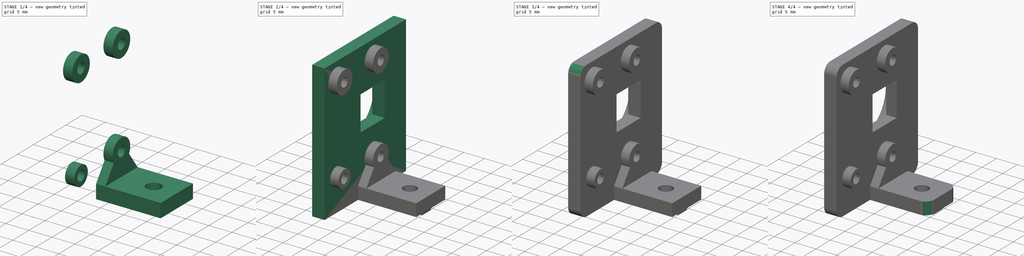
[diagram: build sequence overview — one tinted view per stage of 4, left to right]
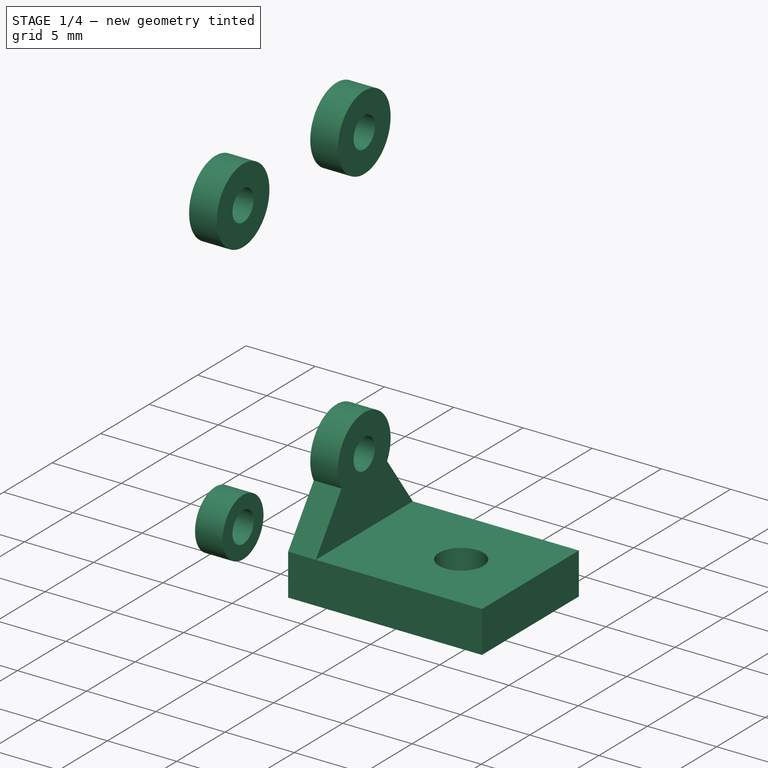
[diagram: stage 1 of 4 — iso view after this stage's code; geometry added in this stage tinted green]
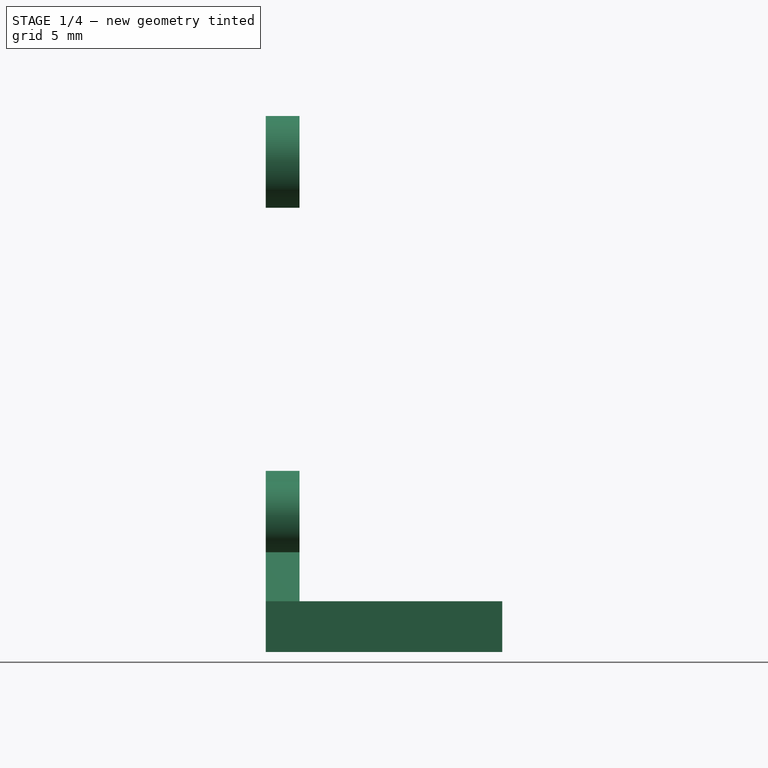
[diagram: stage 1 of 4 — front view after this stage's code; geometry added in this stage tinted green]
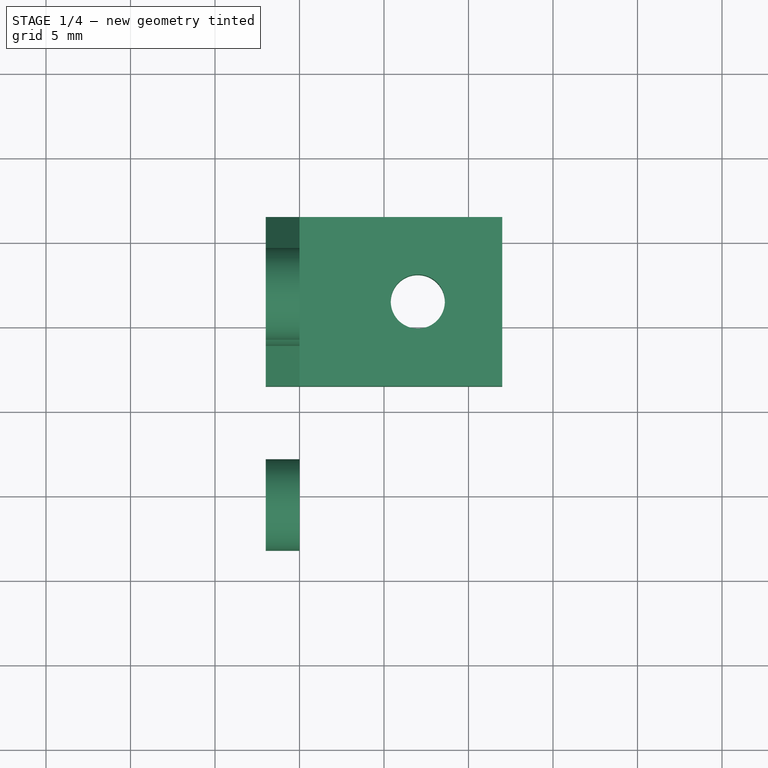
[diagram: stage 1 of 4 — top view after this stage's code; geometry added in this stage tinted green]
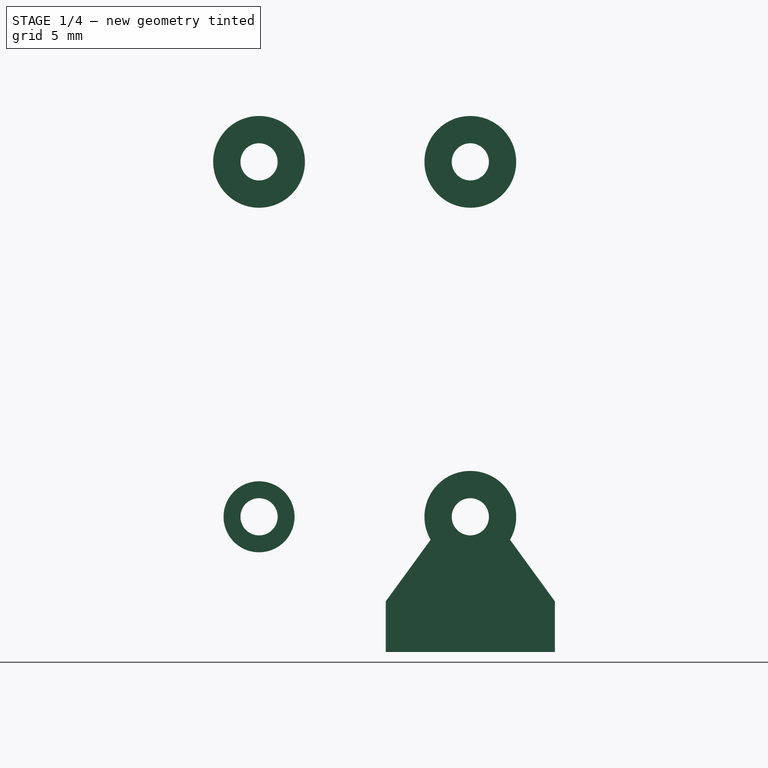
[diagram: stage 1 of 4 — right view after this stage's code; geometry added in this stage tinted green]
FCSTD DOCUMENT  (FreeCAD 0.14R3669 (Git) (Packman))
Label: camera-mount-2
License: CC-BY 3.0
LicenseURL: http://creativecommons.org/licenses/by/3.0/
objects: Sketcher::SketchObject×7, PartDesign::Pad×5, PartDesign::Fillet×3, PartDesign::Pocket×2, Part::MultiFuse×1
note: 25 computed .brp shape members not serialized (recipe doc carries the construction recipe); baked Part::Feature solids carry a one-line shape summary decoded from their .brp

FEATURE [PartDesign::Pad] Pad003
  Length = 2
  Length2 = 100
  Placement = pos=(3,0,0) rot=(0.57735,0.57735,0.57735;2.0944rad)
  Sketch = -> Sketch001
  Type = 0
FEATURE [PartDesign::Pad] Pad004
  Length = 12
  Length2 = 100
  Placement = pos=(5,0,0) rot=(0.57735,0.57735,0.57735;2.0944rad)
  Sketch = -> Sketch002
  Type = 0
FEATURE [Sketcher::SketchObject] Sketch006
  ExternalGeometry = -> [Pad004]
  Placement = pos=(5,0,3) rot=(0,0,-1;1.5708rad)
  Support = -> Pad004 [Face1]
  sketch-geometry (1):
    g0: Circle CenterX=-16.5 CenterY=7 CenterZ=0 NormalX=0 NormalY=0 NormalZ=1 Radius=1.6
  constraints (3):
    c: Radius(g0) = 1.6
    c: DistanceY(g0,g-4) = 5
    c: DistanceX(g0,g-4) = -5
FEATURE [PartDesign::Pocket] Pocket
  Length = 5
  Placement = pos=(5,0,0) rot=(0.57735,0.57735,0.57735;2.0944rad)
  Sketch = -> Sketch006
  Type = 0
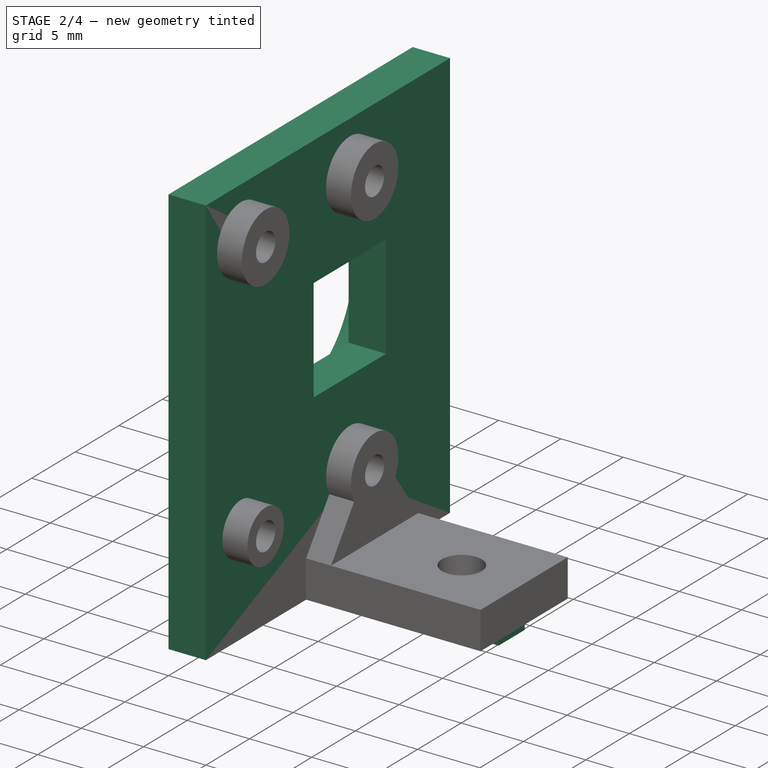
[diagram: stage 2 of 4 — iso view after this stage's code; geometry added in this stage tinted green]
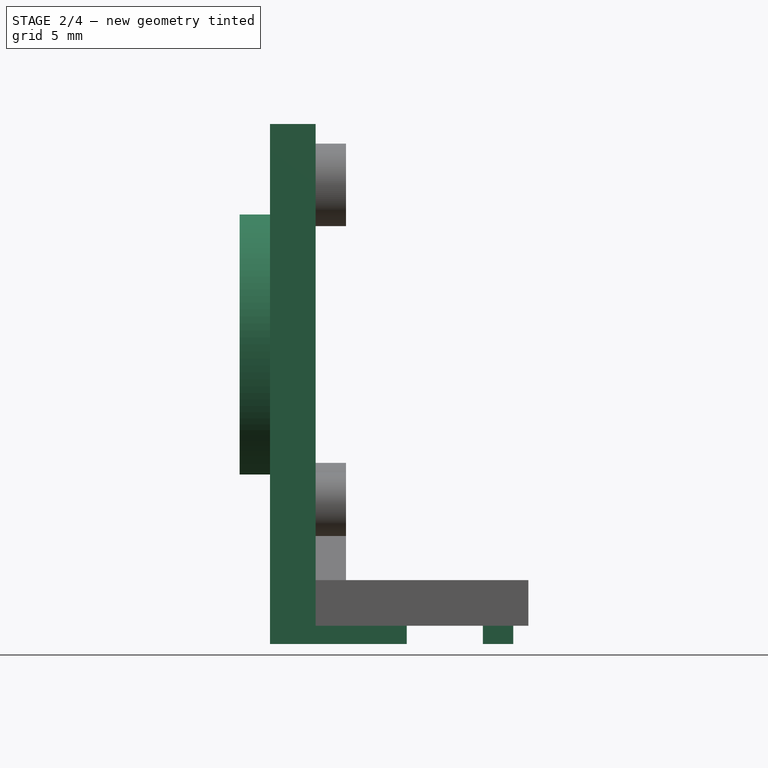
[diagram: stage 2 of 4 — front view after this stage's code; geometry added in this stage tinted green]
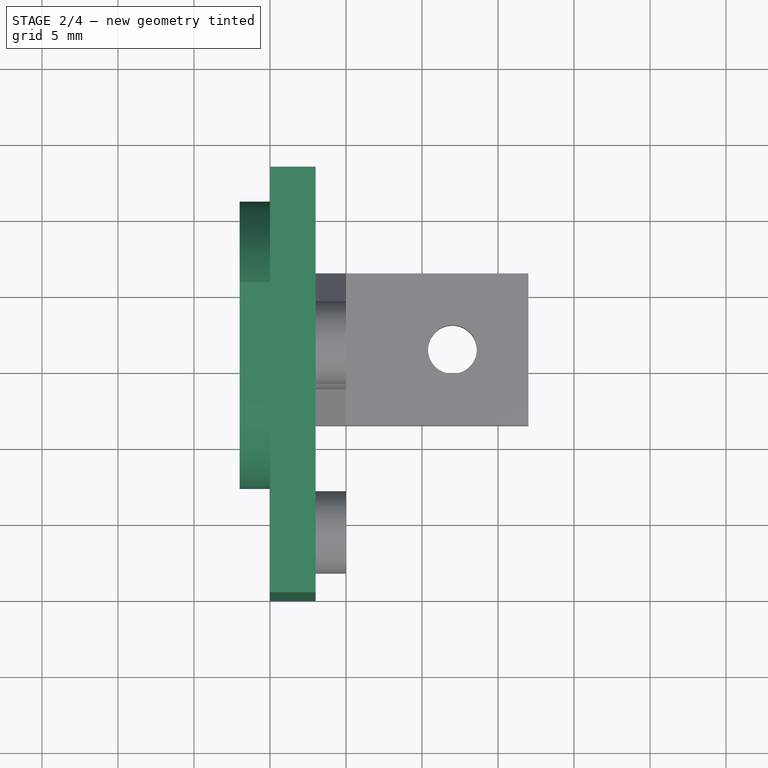
[diagram: stage 2 of 4 — top view after this stage's code; geometry added in this stage tinted green]
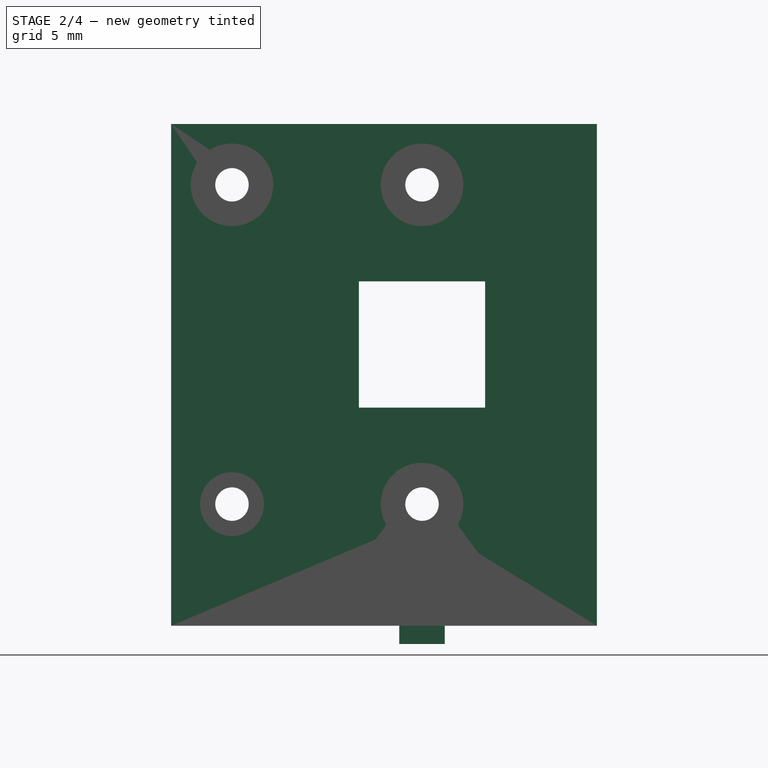
[diagram: stage 2 of 4 — right view after this stage's code; geometry added in this stage tinted green]
FEATURE [Sketcher::SketchObject] Sketch
  Placement = pos=(0,0,0) rot=(0.57735,0.57735,0.57735;2.0944rad)
  sketch-geometry (19):
    g0: LineSegment StartX=0 StartY=0 StartZ=0 EndX=28 EndY=0 EndZ=0
    g1: LineSegment StartX=28 StartY=0 StartZ=0 EndX=28 EndY=33 EndZ=0
    g2: LineSegment StartX=28 StartY=33 StartZ=0 EndX=0 EndY=33 EndZ=0
    g3: LineSegment StartX=0 StartY=33 StartZ=0 EndX=0 EndY=0 EndZ=0
    g4: Circle CenterX=16.5 CenterY=29 CenterZ=0 NormalX=0 NormalY=0 NormalZ=1 Radius=1.1
    g5: Circle CenterX=4 CenterY=29 CenterZ=0 NormalX=0 NormalY=0 NormalZ=1 Radius=1.1
    g6: Circle CenterX=4 CenterY=8 CenterZ=0 NormalX=0 NormalY=0 NormalZ=1 Radius=1.1
    g7: Circle CenterX=16.5 CenterY=8 CenterZ=0 NormalX=0 NormalY=0 NormalZ=1 Radius=1.1
    g8: LineSegment [constr] StartX=4 StartY=8 StartZ=0 EndX=16.5 EndY=8 EndZ=0
    g9: LineSegment [constr] StartX=16.5 StartY=8 StartZ=0 EndX=16.5 EndY=29 EndZ=0
    g10: LineSegment [constr] StartX=16.5 StartY=29 StartZ=0 EndX=4 EndY=29 EndZ=0
    g11: LineSegment [constr] StartX=4 StartY=29 StartZ=0 EndX=4 EndY=8 EndZ=0
    g12: LineSegment StartX=12.35 StartY=22.65 StartZ=0 EndX=20.65 EndY=22.65 EndZ=0
    g13: LineSegment StartX=20.65 StartY=22.65 StartZ=0 EndX=20.65 EndY=14.35 EndZ=0
    g14: LineSegment StartX=20.65 StartY=14.35 StartZ=0 EndX=12.35 EndY=14.35 EndZ=0
    g15: LineSegment StartX=12.35 StartY=14.35 StartZ=0 EndX=12.35 EndY=22.65 EndZ=0
    g16: LineSegment [constr] StartX=12.35 StartY=22.65 StartZ=0 EndX=20.65 EndY=14.35 EndZ=0
    g17: LineSegment [constr] StartX=20.65 StartY=22.65 StartZ=0 EndX=12.35 EndY=14.35 EndZ=0
    g18: GeomPoint [constr] X=16.5 Y=18.5 Z=0
  constraints (49):
    c: Coincident(g0,g1)
    c: Coincident(g1,g2)
    c: Coincident(g2,g3)
    c: Coincident(g3,g0)
    c: Horizontal(g0)
    c: Horizontal(g2)
    c: Vertical(g1)
    c: Vertical(g3)
    c: Coincident(g0,g-1)
    c: DistanceY(g3) = -33
    c: DistanceX(g0) = 28
    c: Equal(g5,g4)
    c: Equal(g4,g6)
    c: Equal(g6,g7)
    c: Radius(g6) = 1.1
    c: Coincident(g8,g9)
    c: Coincident(g9,g10)
    c: Coincident(g10,g11)
    c: Coincident(g11,g8)
    c: Horizontal(g8)
    c: Horizontal(g10)
    c: Vertical(g9)
    c: Vertical(g11)
    c: DistanceY(g11) = -21
    c: DistanceX(g8) = 12.5
    c: Coincident(g6,g8)
    c: Coincident(g7,g8)
    c: Coincident(g5,g10)
    c: Coincident(g9,g4)
    c: Coincident(g12,g13)
    c: Coincident(g13,g14)
    c: Coincident(g14,g15)
    c: Coincident(g15,g12)
    c: Horizontal(g12)
    c: Horizontal(g14)
    c: Vertical(g13)
    c: Vertical(g15)
    c: DistanceY(g13) = -8.3
    c: DistanceX(g12) = 8.3
    c: Symmetric(g13,g14,g9)
    c: DistanceY(g13,g7) = -6.35
    c: DistanceX(g-1,g6) = 4
    c: Coincident(g16,g12)
    c: Coincident(g16,g13)
    c: Coincident(g17,g12)
    c: Coincident(g17,g14)
    c: PointOnObject(g18,g17)
    c: PointOnObject(g18,g16)
    c: DistanceY(g-1,g18) = 18.5
FEATURE [Sketcher::SketchObject] Sketch001
  Placement = pos=(3,0,0) rot=(0.57735,0.57735,0.57735;2.0944rad)
  sketch-geometry (19):
    g0: Circle CenterX=16.5 CenterY=29 CenterZ=0 NormalX=0 NormalY=0 NormalZ=1 Radius=1.1
    g1: Circle CenterX=4 CenterY=29 CenterZ=0 NormalX=0 NormalY=0 NormalZ=1 Radius=1.1
    g2: Circle CenterX=4 CenterY=8 CenterZ=0 NormalX=0 NormalY=0 NormalZ=1 Radius=1.1
    g3: Circle CenterX=16.5 CenterY=8 CenterZ=0 NormalX=0 NormalY=0 NormalZ=1 Radius=1.1
    g4: LineSegment [constr] StartX=4 StartY=8 StartZ=0 EndX=16.5 EndY=8 EndZ=0
    g5: LineSegment [constr] StartX=16.5 StartY=8 StartZ=0 EndX=16.5 EndY=29 EndZ=0
    g6: LineSegment [constr] StartX=16.5 StartY=29 StartZ=0 EndX=4 EndY=29 EndZ=0
    g7: LineSegment [constr] StartX=4 StartY=29 StartZ=0 EndX=4 EndY=8 EndZ=0
    g8: Circle CenterX=4 CenterY=8 CenterZ=0 NormalX=0 NormalY=0 NormalZ=1 Radius=2.1
    g9: ArcOfCircle CenterX=16.5 CenterY=8 CenterZ=0 NormalX=0 NormalY=0 NormalZ=1 Radius=2.71418 StartAngle=1.5708 EndAngle=3.6659
    g10: Circle CenterX=4 CenterY=29 CenterZ=0 NormalX=0 NormalY=0 NormalZ=1 Radius=2.71418
    g11: Circle CenterX=16.5 CenterY=29 CenterZ=0 NormalX=0 NormalY=0 NormalZ=1 Radius=2.71418
    g12: LineSegment StartX=21.5 StartY=3 StartZ=0 EndX=21.5 EndY=0 EndZ=0
    g13: LineSegment StartX=21.5 StartY=0 StartZ=0 EndX=11.5 EndY=0 EndZ=0
    g14: LineSegment StartX=11.5 StartY=0 StartZ=0 EndX=11.5 EndY=3 EndZ=0
    g15: LineSegment StartX=14.1504 StartY=6.64123 StartZ=0 EndX=11.5 EndY=3 EndZ=0
    g16: LineSegment StartX=18.8496 StartY=6.64123 StartZ=0 EndX=21.5 EndY=3 EndZ=0
    g17: ArcOfCircle CenterX=16.5 CenterY=8 CenterZ=0 NormalX=0 NormalY=0 NormalZ=1 Radius=2.71418 StartAngle=5.75887 EndAngle=7.85398
    g18: LineSegment [constr] StartX=4 StartY=18.5 StartZ=0 EndX=16.5 EndY=18.5 EndZ=0
  constraints (53):
    c: Equal(g1,g0)
    c: Equal(g0,g2)
    c: Equal(g2,g3)
    c: Coincident(g4,g5)
    c: Coincident(g5,g6)
    c: Coincident(g6,g7)
    c: Coincident(g7,g4)
    c: Coincident(g2,g4)
    c: Coincident(g3,g4)
    c: Coincident(g1,g6)
    c: Coincident(g5,g0)
    c: DistanceX(g-1,g2) = 4
    c: Coincident(g8,g2)
    c: Coincident(g10,g1)
    c: Coincident(g11,g0)
    c: Coincident(g9,g3)
    c: Equal(g9,g11)
    c: Equal(g11,g10)
    c: Coincident(g12,g13)
    c: Coincident(g13,g14)
    c: DistanceX(g13,g3) = 5
    c: PointOnObject(g13,g-1)
    c: Tangent(g15,g3)
    c: Tangent(g16,g3)
    c: PointOnObject(g16,g9)
    c: Equal(g16,g15)
    c: PointOnObject(g9,g5)
    c: PointOnObject(g9,g15)
    c: Coincident(g17,g3)
    c: Coincident(g17,g16)
    c: Coincident(g17,g9)
    c: DistanceY(g12) = -3
    c: DistanceX(g13) = -10
    c: Vertical(g12)
    c: Vertical(g14)
    c: Horizontal(g13)
    c: Radius(g2) = 1.1
    c: Equal(g4,g6)
    c: Equal(g7,g5)
    c: Vertical(g7)
    c: Horizontal(g4)
    c: DistanceX(g4) = 12.5
    c: DistanceY(g7) = -21
    c: Coincident(g15,g9)
    c: Coincident(g15,g14)
    c: Coincident(g16,g12)
    c: Radius(g8) = 2.1
    c: Radius(g11) = 2.71418
    c: PointOnObject(g18,g7)
    c: PointOnObject(g18,g5)
    c: Horizontal(g18)
    c: Symmetric(g3,g0,g18)
    c: DistanceY(g-1,g18) = 18.5
FEATURE [Sketcher::SketchObject] Sketch002
  Placement = pos=(5,0,0) rot=(0.57735,0.57735,0.57735;2.0944rad)
  sketch-geometry (4):
    g0: LineSegment StartX=11.5 StartY=3 StartZ=0 EndX=21.5 EndY=3 EndZ=0
    g1: LineSegment StartX=21.5 StartY=3 StartZ=0 EndX=21.5 EndY=0 EndZ=0
    g2: LineSegment StartX=21.5 StartY=0 StartZ=0 EndX=11.5 EndY=0 EndZ=0
    g3: LineSegment StartX=11.5 StartY=0 StartZ=0 EndX=11.5 EndY=3 EndZ=0
  constraints (12):
    c: Coincident(g0,g1)
    c: Coincident(g1,g2)
    c: Coincident(g2,g3)
    c: Coincident(g3,g0)
    c: PointOnObject(g1,g-1)
    c: DistanceX(g-1,g2) = 11.5
    c: Vertical(g3)
    c: Vertical(g1)
    c: Horizontal(g0)
    c: Horizontal(g2)
    c: DistanceX(g2) = -10
    c: DistanceY(g1) = -3
FEATURE [Sketcher::SketchObject] Sketch004
  Placement = pos=(0,0,0) rot=(0.707107,0.707107,0;3.14159rad)
  sketch-geometry (8):
    g0: LineSegment StartX=15 StartY=9 StartZ=0 EndX=18 EndY=9 EndZ=0
    g1: LineSegment StartX=18 StartY=9 StartZ=0 EndX=18 EndY=0 EndZ=0
    g2: LineSegment StartX=18 StartY=0 StartZ=0 EndX=15 EndY=0 EndZ=0
    g3: LineSegment StartX=15 StartY=0 StartZ=0 EndX=15 EndY=9 EndZ=0
    g4: LineSegment StartX=15 StartY=16 StartZ=0 EndX=18 EndY=16 EndZ=0
    g5: LineSegment StartX=18 StartY=16 StartZ=0 EndX=18 EndY=14 EndZ=0
    g6: LineSegment StartX=18 StartY=14 StartZ=0 EndX=15 EndY=14 EndZ=0
    g7: LineSegment StartX=15 StartY=14 StartZ=0 EndX=15 EndY=16 EndZ=0
  constraints (24):
    c: Coincident(g0,g1)
    c: Coincident(g1,g2)
    c: Coincident(g2,g3)
    c: Coincident(g3,g0)
    c: Coincident(g4,g5)
    c: Coincident(g5,g6)
    c: Coincident(g6,g7)
    c: Coincident(g7,g4)
    c: Equal(g4,g0)
    c: DistanceX(g-1,g2) = 15
    c: DistanceX(g-1,g6) = 15
    c: DistanceY(g5,g0) = -5
    c: PointOnObject(g2,g-1)
    c: Vertical(g3)
    c: Vertical(g1)
    c: Vertical(g5)
    c: Vertical(g7)
    c: Horizontal(g6)
    c: Horizontal(g4)
    c: Horizontal(g0)
    c: Horizontal(g2)
    c: DistanceY(g1) = -9
    c: DistanceY(g5) = -2
    c: DistanceX(g4) = 3
FEATURE [Sketcher::SketchObject] Sketch005
  Placement = pos=(0,0,0) rot=(0.57735,0.57735,-0.57735;4.18879rad)
  sketch-geometry (5):
    g0: Circle CenterX=16.5 CenterY=-18.5 CenterZ=0 NormalX=0 NormalY=0 NormalZ=1 Radius=7.55
    g1: ArcOfCircle CenterX=16.5 CenterY=-18.5 CenterZ=0 NormalX=0 NormalY=0 NormalZ=1 Radius=9.44986 StartAngle=2.01074 EndAngle=4.27244
    g2: LineSegment StartX=12.4754 StartY=-9.95 StartZ=0 EndX=20.5246 EndY=-9.95 EndZ=0
    g3: LineSegment StartX=12.4754 StartY=-27.05 StartZ=0 EndX=20.5246 EndY=-27.05 EndZ=0
    g4: ArcOfCircle CenterX=16.5 CenterY=-18.5 CenterZ=0 NormalX=0 NormalY=0 NormalZ=1 Radius=9.44986 StartAngle=5.15233 EndAngle=7.41404
  constraints (15):
    c: Coincident(g1,g0)
    c: Coincident(g1,g2)
    c: Coincident(g4,g2)
    c: Equal(g3,g2)
    c: Equal(g1,g4)
    c: Coincident(g1,g3)
    c: Coincident(g4,g3)
    c: Coincident(g1,g4)
    c: DistanceY(g3,g2) = 17.1
    c: Radius(g0) = 7.55
    c: DistanceX(g-1,g0) = 16.5
    c: DistanceX(g-1,g1) = 12.4754
    c: Horizontal(g2)
    c: DistanceY(g-1,g0) = -18.5
    c: Horizontal(g3)
FEATURE [PartDesign::Pad] Pad
  Length = 3
  Length2 = 100
  Placement = pos=(0,0,0) rot=(0.57735,0.57735,0.57735;2.0944rad)
  Sketch = -> Sketch
  Type = 0
FEATURE [PartDesign::Pad] Pad001
  Length = 2
  Length2 = 100
  Placement = pos=(0,0,0) rot=(0.57735,0.57735,-0.57735;4.18879rad)
  Sketch = -> Sketch005
  Type = 0
FEATURE [PartDesign::Pad] Pad002
  Length = 1.2
  Length2 = 100
  Placement = pos=(0,0,0) rot=(0.707107,0.707107,0;3.14159rad)
  Sketch = -> Sketch004
  Type = 0
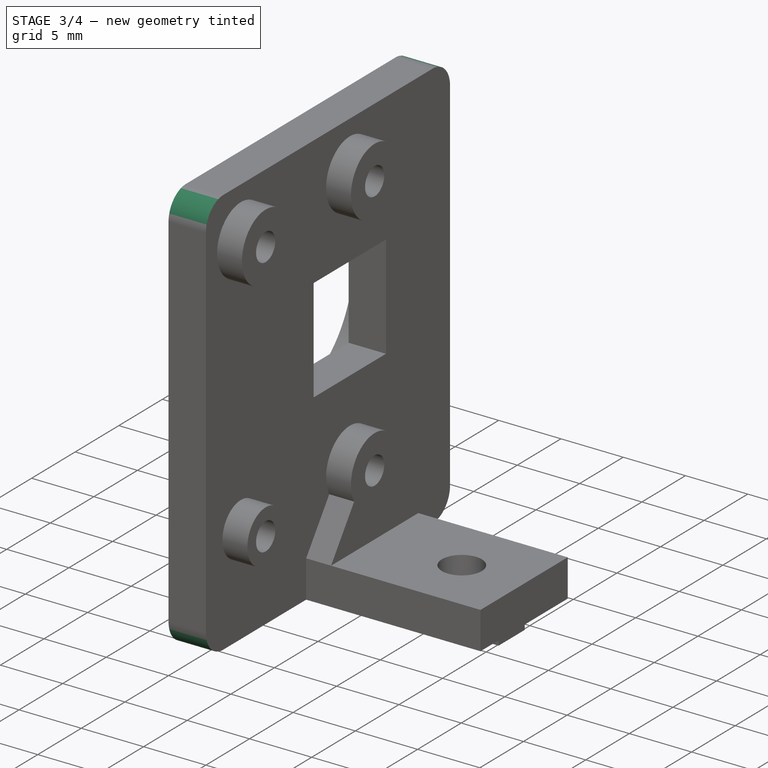
[diagram: stage 3 of 4 — iso view after this stage's code; geometry added in this stage tinted green]
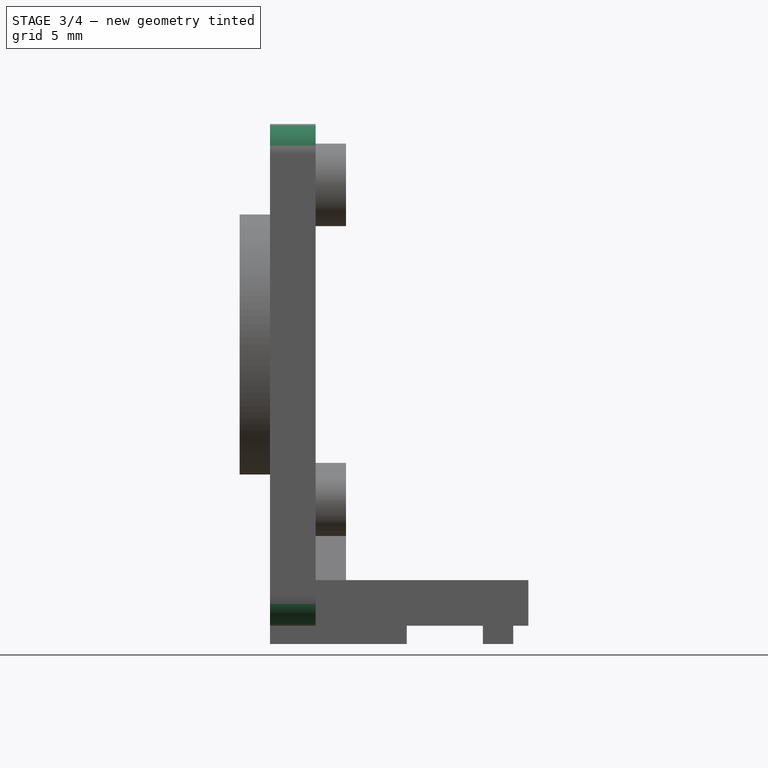
[diagram: stage 3 of 4 — front view after this stage's code; geometry added in this stage tinted green]
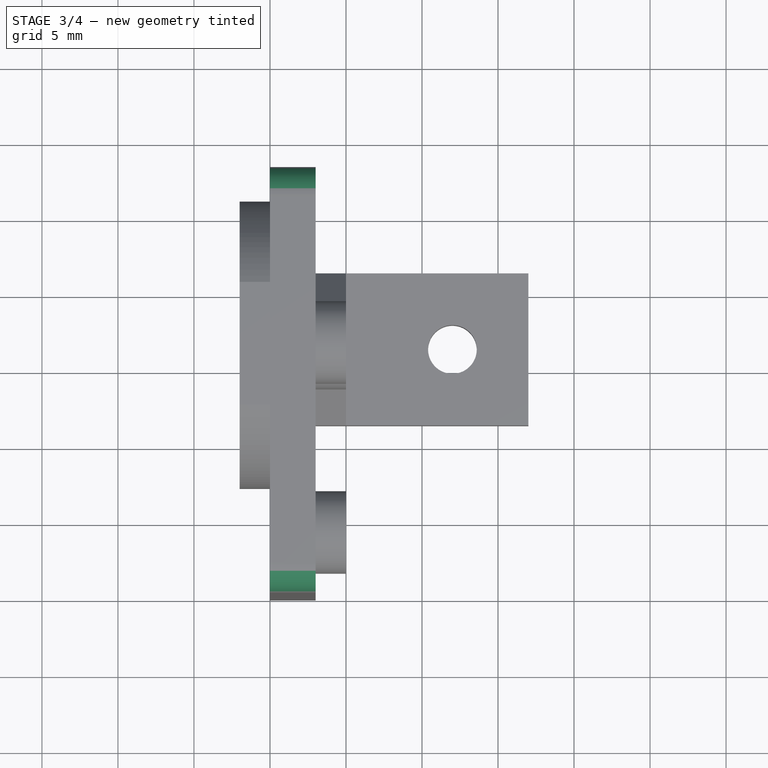
[diagram: stage 3 of 4 — top view after this stage's code; geometry added in this stage tinted green]
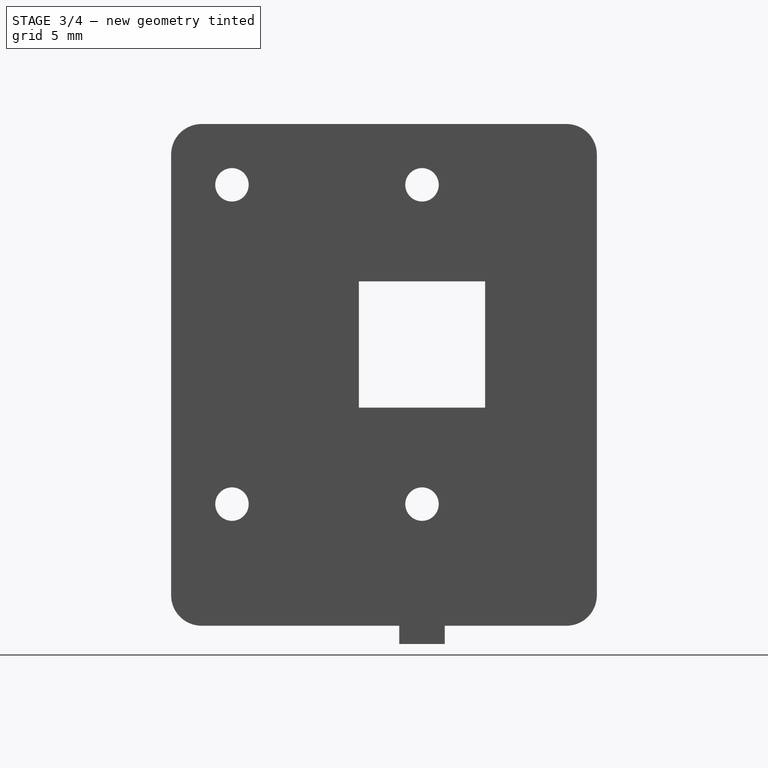
[diagram: stage 3 of 4 — right view after this stage's code; geometry added in this stage tinted green]
FEATURE [Part::MultiFuse] Fusion
  Shapes = -> [Pad003,Pocket,Pad002,Pad001,Pad]
FEATURE [PartDesign::Fillet] Fillet
  Base = -> Fusion [Edge5,Edge1,Edge2,Edge38]
  Radius = 2
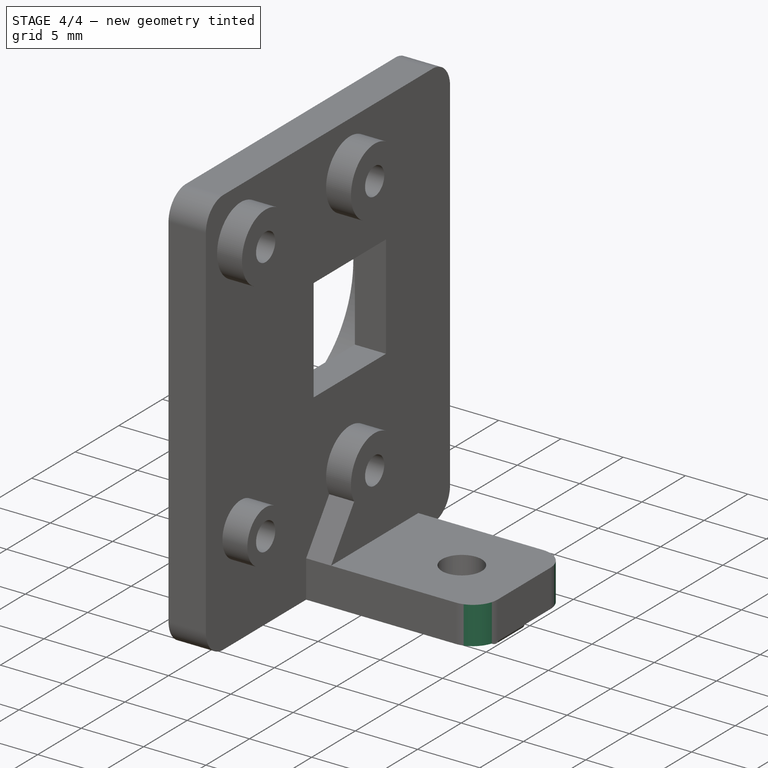
[diagram: stage 4 of 4 — iso view after this stage's code; geometry added in this stage tinted green]
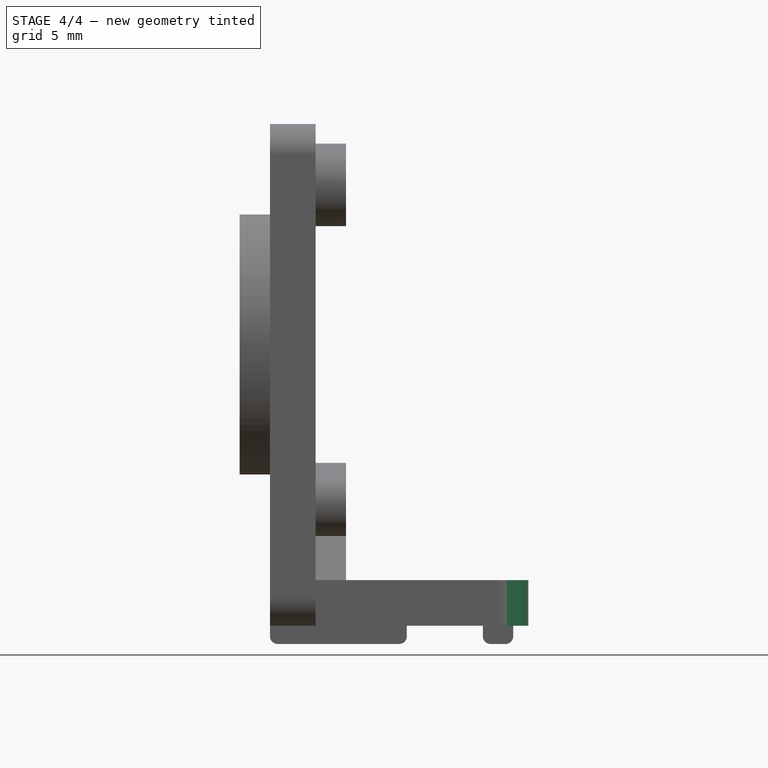
[diagram: stage 4 of 4 — front view after this stage's code; geometry added in this stage tinted green]
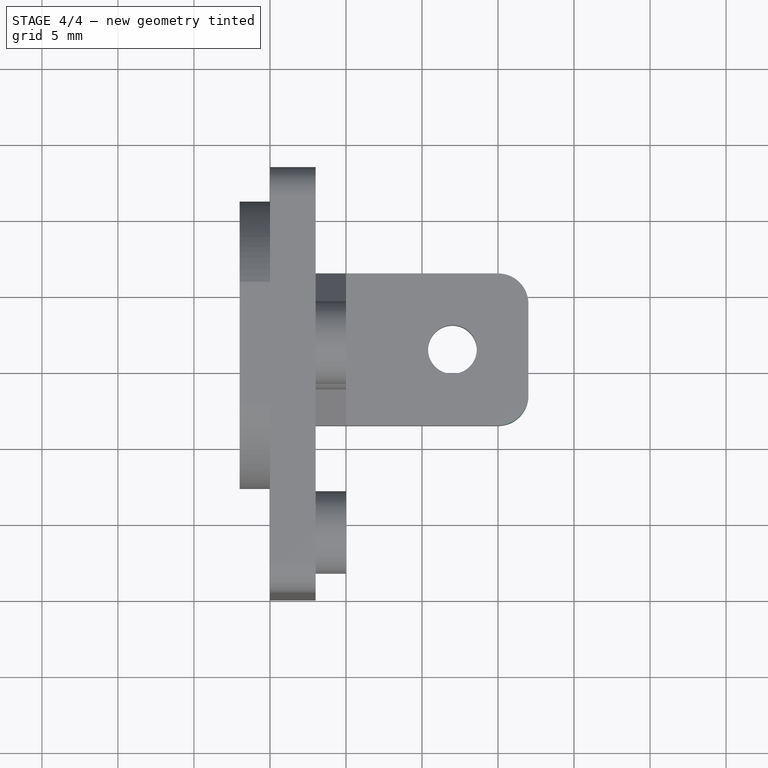
[diagram: stage 4 of 4 — top view after this stage's code; geometry added in this stage tinted green]
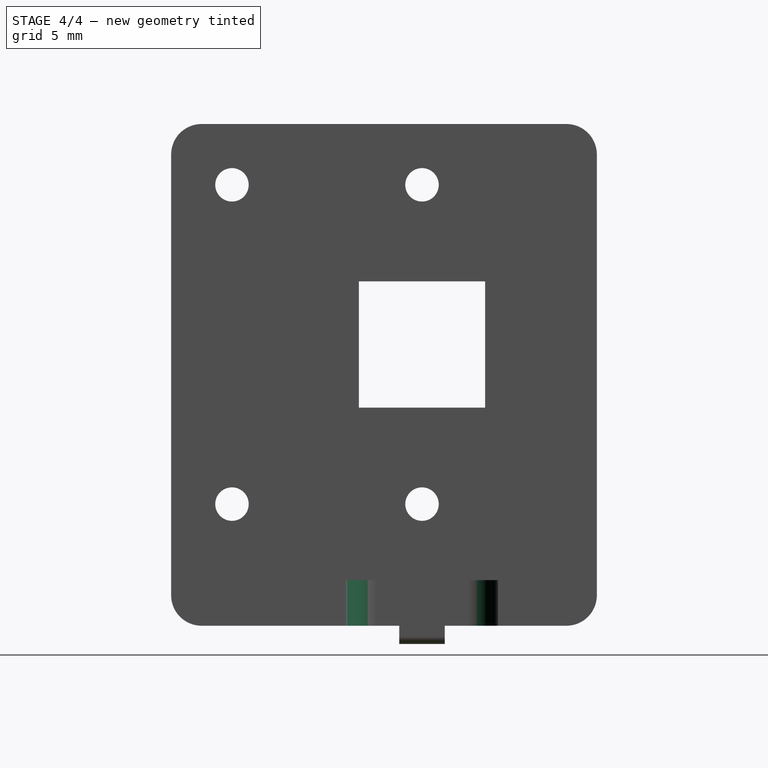
[diagram: stage 4 of 4 — right view after this stage's code; geometry added in this stage tinted green]
FEATURE [PartDesign::Fillet] Fillet001
  Base = -> Fillet [Edge120,Edge124]
  Radius = 2
FEATURE [PartDesign::Fillet] Fillet002
  Base = -> Fillet001 [Edge37,Edge51,Edge54,Edge85]
  Radius = 0.5
FEATURE [Sketcher::SketchObject] Sketch007
  ExternalGeometry = -> [Fillet002]
  Placement = pos=(0,0,0) rot=(0.57735,-0.57735,-0.57735;2.0944rad)
  Support = -> Fillet002 [Face63]
  sketch-geometry (1):
    g0: Circle CenterX=-16.5246 CenterY=18.45 CenterZ=0 NormalX=0 NormalY=0 NormalZ=1 Radius=7.5
  constraints (3):
    c: DistanceY(g0,g-3) = 8.6
    c: Radius(g0) = 7.5
    c: DistanceX(g0,g-3) = -4
FEATURE [PartDesign::Pocket] Pocket001
  Length = 0.5
  Sketch = -> Sketch007
  Type = 0
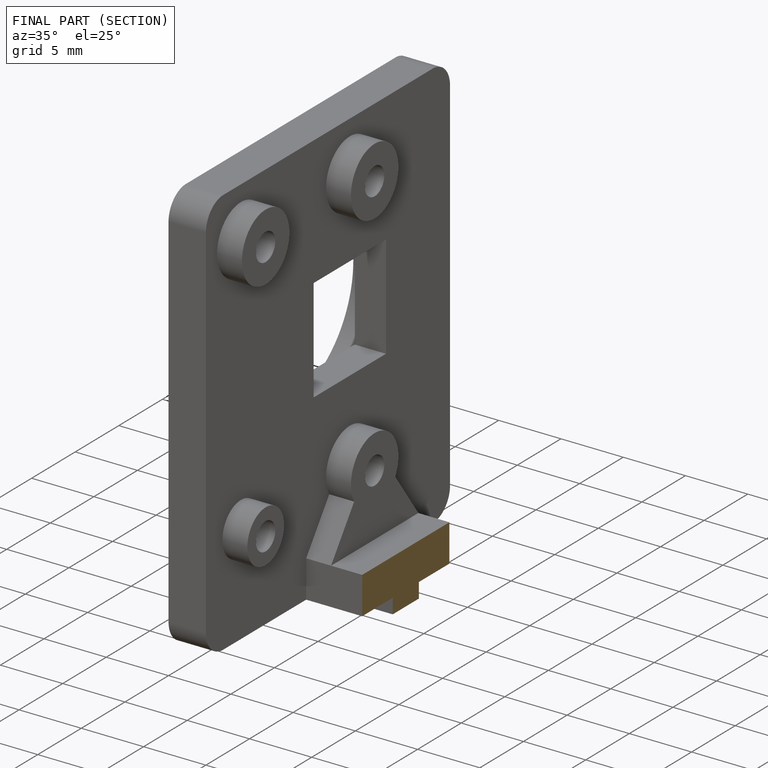
[diagram: finished part — half-section view (interior)]
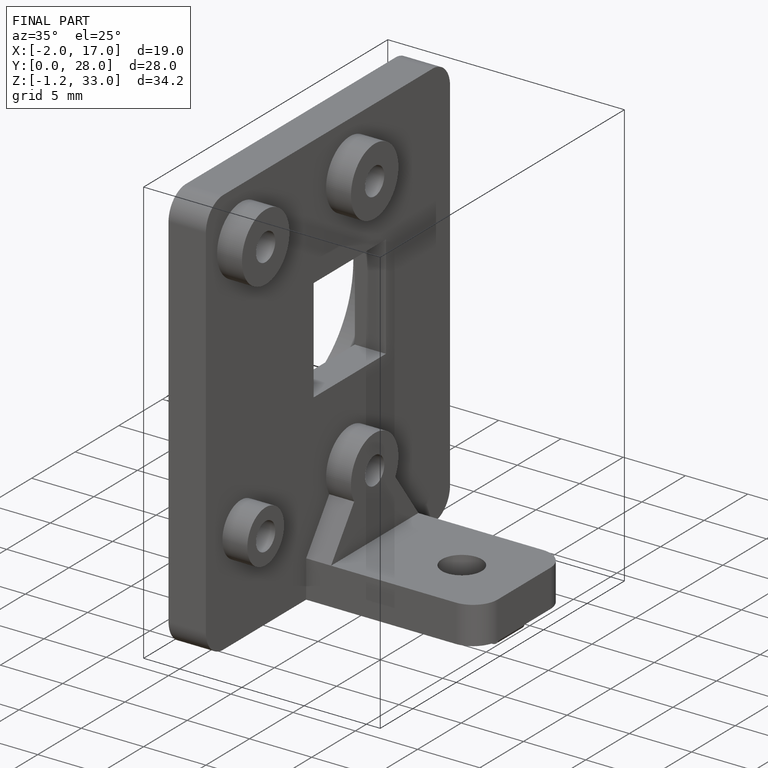
[diagram: finished part — iso view with bounding-box wireframe]
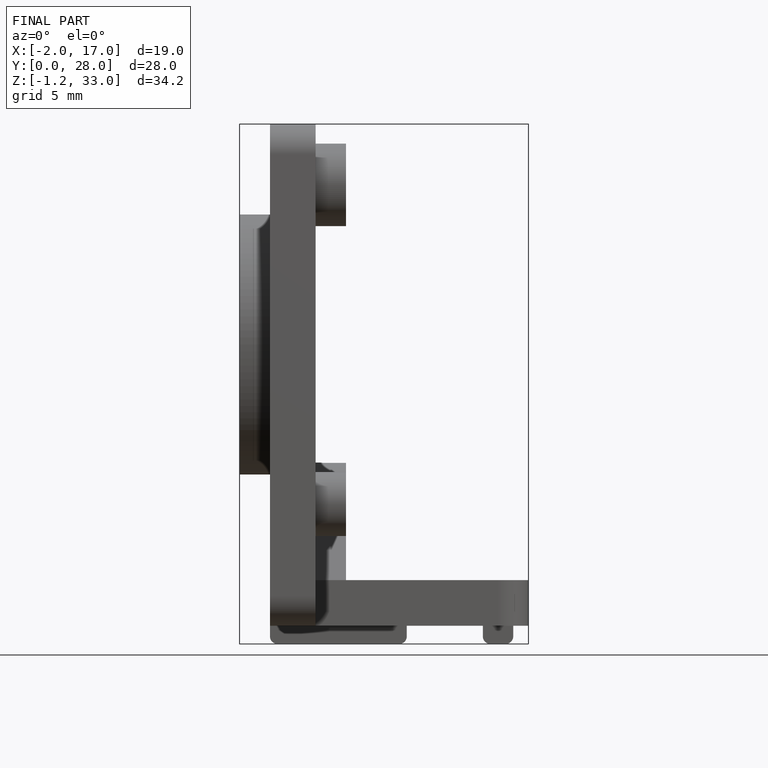
[diagram: finished part — front view with bounding-box wireframe]
